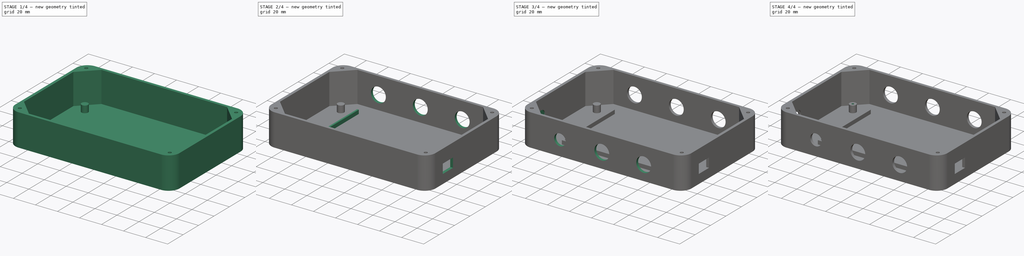
[diagram: build sequence overview — one tinted view per stage of 4, left to right]
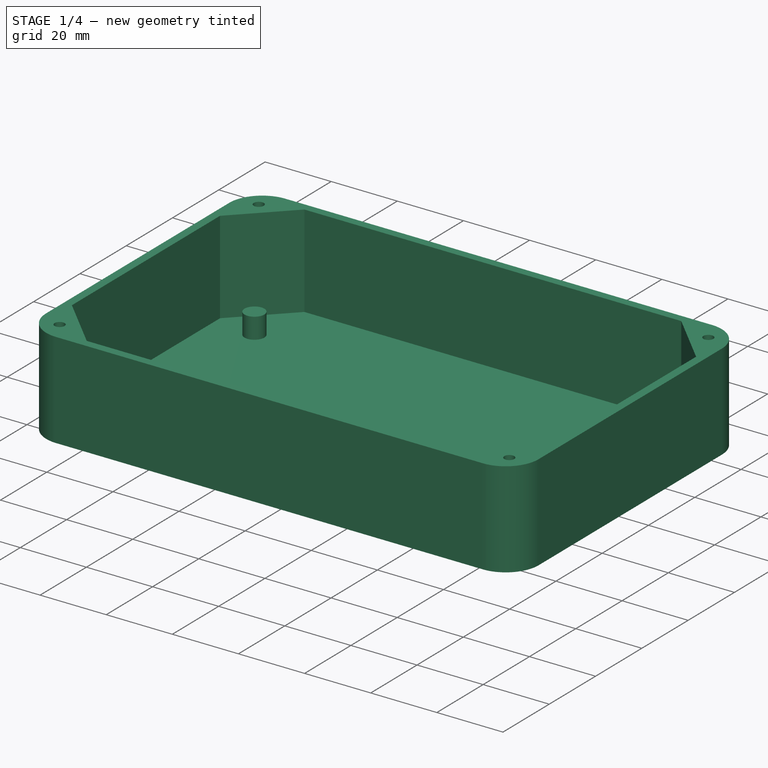
[diagram: stage 1 of 4 — iso view after this stage's code; geometry added in this stage tinted green]
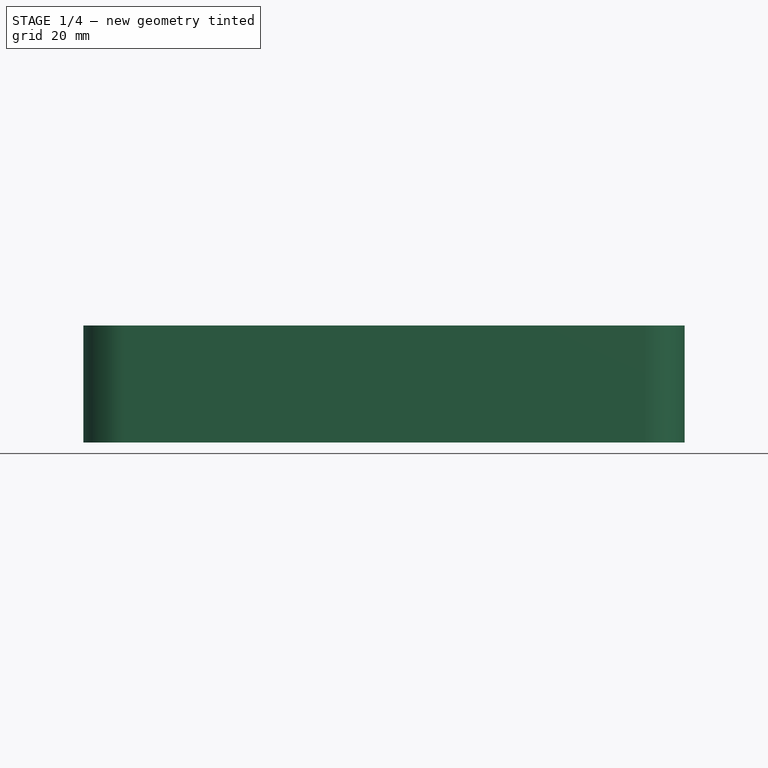
[diagram: stage 1 of 4 — front view after this stage's code; geometry added in this stage tinted green]
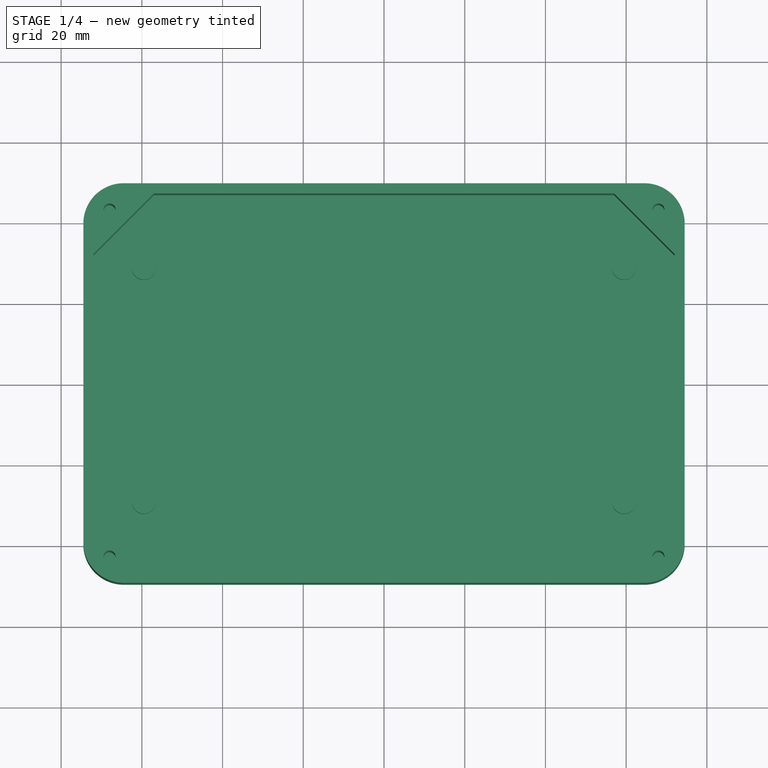
[diagram: stage 1 of 4 — top view after this stage's code; geometry added in this stage tinted green]
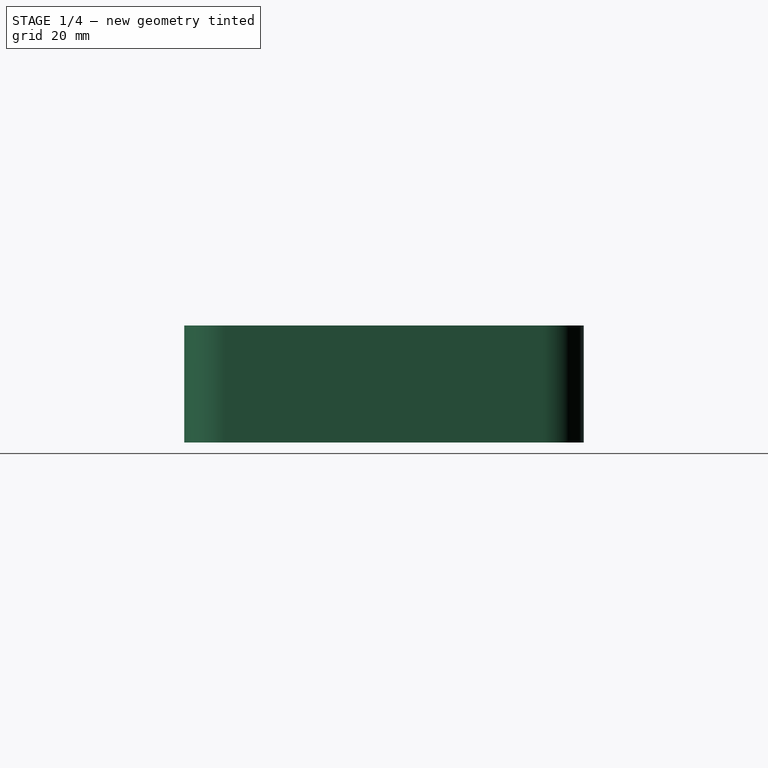
[diagram: stage 1 of 4 — right view after this stage's code; geometry added in this stage tinted green]
FCSTD DOCUMENT  (FreeCAD 0.18.4R)
Label: enclosure
License: All rights reserved
LicenseURL: http://en.wikipedia.org/wiki/All_rights_reserved
objects: Sketcher::SketchObject×11, PartDesign::Pocket×8, PartDesign::Pad×3, PartDesign::Body×1
note: 34 computed .brp shape members not serialized (recipe doc carries the construction recipe); baked Part::Feature solids carry a one-line shape summary decoded from their .brp

FEATURE [Sketcher::SketchObject] Sketch
  MapMode = 5
  Support = -> [XY_Plane]
  sketch-geometry (8):
    g0: LineSegment StartX=-64.5 StartY=49.5 StartZ=0 EndX=64.5 EndY=49.5 EndZ=0
    g1: LineSegment StartX=74.5 StartY=39.5 StartZ=0 EndX=74.5 EndY=-39.5 EndZ=0
    g2: LineSegment StartX=64.5 StartY=-49.5 StartZ=0 EndX=-64.5 EndY=-49.5 EndZ=0
    g3: LineSegment StartX=-74.5 StartY=-39.5 StartZ=0 EndX=-74.5 EndY=39.5 EndZ=0
    g4: ArcOfCircle CenterX=-64.5 CenterY=39.5 CenterZ=0 NormalX=0 NormalY=0 NormalZ=1 AngleXU=0 Radius=10 StartAngle=1.5708 EndAngle=3.14159
    g5: ArcOfCircle CenterX=-64.5 CenterY=-39.5 CenterZ=0 NormalX=0 NormalY=0 NormalZ=1 AngleXU=0 Radius=10 StartAngle=3.14159 EndAngle=4.71239
    g6: ArcOfCircle CenterX=64.5 CenterY=-39.5 CenterZ=0 NormalX=0 NormalY=0 NormalZ=1 AngleXU=0 Radius=10 StartAngle=4.71239 EndAngle=6.28319
    g7: ArcOfCircle CenterX=64.5 CenterY=39.5 CenterZ=0 NormalX=0 NormalY=0 NormalZ=1 AngleXU=0 Radius=10 StartAngle=8.2e-15 EndAngle=1.5708
  constraints (19):
    c: Horizontal(g0)
    c: Horizontal(g2)
    c: Vertical(g1)
    c: Vertical(g3)
    c: Tangent(g0,g4) = 1.5708
    c: Tangent(g3,g4) = 1.5708
    c: Tangent(g3,g5) = 1.5708
    c: Tangent(g2,g5) = 1.5708
    c: Tangent(g1,g6) = 1.5708
    c: Tangent(g2,g6) = 1.5708
    c: Tangent(g0,g7) = 1.5708
    c: Tangent(g1,g7) = 1.5708
    c: Equal(g7,g4)
    c: Equal(g4,g5)
    c: Equal(g5,g6)
    c: Symmetric(g7,g5,g-1)
    c: DistanceY(g2,g0) = 99
    c: DistanceX(g3,g1) = 149
    c: Radius(g4) = 10
FEATURE [PartDesign::Pad] Pad
  Length = 29
  Length2 = 100
  Profile = -> Sketch
  Type = 0
FEATURE [Sketcher::SketchObject] Sketch001
  ExternalGeometry = -> [Pad]
  MapMode = 5
  Placement = pos=(0,0,29) rot=(0,0,1;0rad)
  Support = -> [Pad]
  sketch-geometry (12):
    g0: LineSegment StartX=-57 StartY=47 StartZ=0 EndX=57 EndY=47 EndZ=0
    g1: LineSegment StartX=57 StartY=47 StartZ=0 EndX=72 EndY=32 EndZ=0
    g2: LineSegment StartX=72 StartY=32 StartZ=0 EndX=72 EndY=-32 EndZ=0
    g3: LineSegment StartX=72 StartY=-32 StartZ=0 EndX=57 EndY=-47 EndZ=0
    g4: LineSegment StartX=57 StartY=-47 StartZ=0 EndX=-57 EndY=-47 EndZ=0
    g5: LineSegment StartX=-57 StartY=-47 StartZ=0 EndX=-72 EndY=-32 EndZ=0
    g6: LineSegment StartX=-72 StartY=-32 StartZ=0 EndX=-72 EndY=32 EndZ=0
    g7: LineSegment StartX=-72 StartY=32 StartZ=0 EndX=-57 EndY=47 EndZ=0
    g8: Circle CenterX=68 CenterY=43 CenterZ=0 NormalX=0 NormalY=0 NormalZ=1 AngleXU=0 Radius=1.5
    g9: Circle CenterX=-68 CenterY=43 CenterZ=0 NormalX=0 NormalY=0 NormalZ=1 AngleXU=0 Radius=1.5
    g10: Circle CenterX=68 CenterY=-43 CenterZ=0 NormalX=0 NormalY=0 NormalZ=1 AngleXU=0 Radius=1.5
    g11: Circle CenterX=-68 CenterY=-43 CenterZ=0 NormalX=0 NormalY=0 NormalZ=1 AngleXU=0 Radius=1.5
  constraints (34):
    c: Horizontal(g0)
    c: Coincident(g0,g1)
    c: Coincident(g1,g2)
    c: Vertical(g2)
    c: Coincident(g2,g3)
    c: Coincident(g3,g4)
    c: Horizontal(g4)
    c: Coincident(g4,g5)
    c: Coincident(g5,g6)
    c: Coincident(g6,g7)
    c: Coincident(g7,g0)
    c: Vertical(g6)
    c: Equal(g2,g6)
    c: Equal(g0,g4)
    c: Equal(g7,g1)
    c: Equal(g1,g3)
    c: Equal(g3,g5)
    c: DistanceY(g0,g-3) = 2.5
    c: DistanceY(g-4,g3) = 2.5
    c: DistanceX(g2,g-5) = 2.5
    c: DistanceX(g-6,g5) = 2.5
    c: Angle(g1,g2) = 2.35619
    c: Angle(g6,g7) = 2.35619
    c: DistanceX(g3,g3) = 15
    c: Radius(g8) = 1.5
    c: Equal(g11,g10)
    c: Equal(g10,g9)
    c: Equal(g9,g8)
    c: Horizontal(g10,g11)
    c: Vertical(g11,g9)
    c: Symmetric(g9,g8,g-2)
    c: Symmetric(g10,g8,g-1)
    c: DistanceY(g-7,g8) = 3.5
    c: DistanceX(g-7,g8) = 3.5
FEATURE [PartDesign::Pocket] Pocket
  BaseFeature = -> Pad
  Length = 28
  Length2 = 100
  Profile = -> Sketch001
  Type = 0
FEATURE [Sketcher::SketchObject] Sketch004
  MapMode = 5
  Placement = pos=(0,0,1) rot=(0,0,1;0rad)
  Support = -> [Pocket]
  sketch-geometry (4):
    g0: Circle CenterX=-59.5 CenterY=29 CenterZ=0 NormalX=0 NormalY=0 NormalZ=1 AngleXU=0 Radius=3
    g1: Circle CenterX=-59.5 CenterY=-29 CenterZ=0 NormalX=0 NormalY=0 NormalZ=1 AngleXU=0 Radius=3
    g2: Circle CenterX=59.5 CenterY=-29 CenterZ=0 NormalX=0 NormalY=0 NormalZ=1 AngleXU=0 Radius=3
    g3: Circle CenterX=59.5 CenterY=29 CenterZ=0 NormalX=0 NormalY=0 NormalZ=1 AngleXU=0 Radius=3
  constraints (11):
    c: Equal(g2,g1)
    c: Radius(g0) = 3
    c: Horizontal(g0,g3)
    c: Horizontal(g1,g2)
    c: Vertical(g1,g0)
    c: DistanceY(g1,g0) = 58
    c: Symmetric(g0,g2,g-1)
    c: Radius(g1) = 3
    c: Equal(g2,g3)
    c: DistanceX(g3,g2) = 0
    c: DistanceX(g1,g2) = 119
FEATURE [PartDesign::Pad] Pad001
  BaseFeature = -> Pocket
  Length = 6.3
  Length2 = 100
  Profile = -> Sketch004
  Type = 0
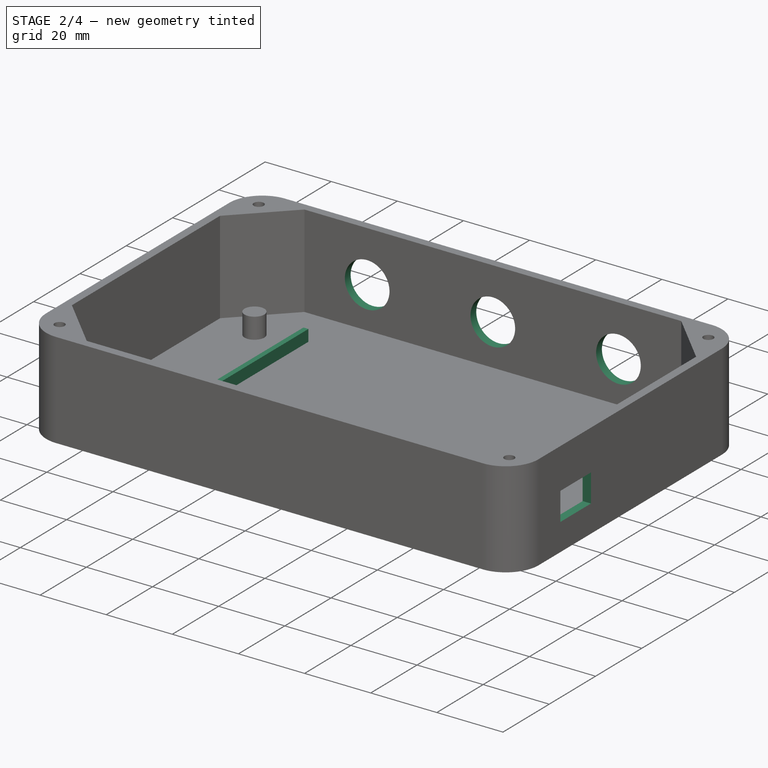
[diagram: stage 2 of 4 — iso view after this stage's code; geometry added in this stage tinted green]
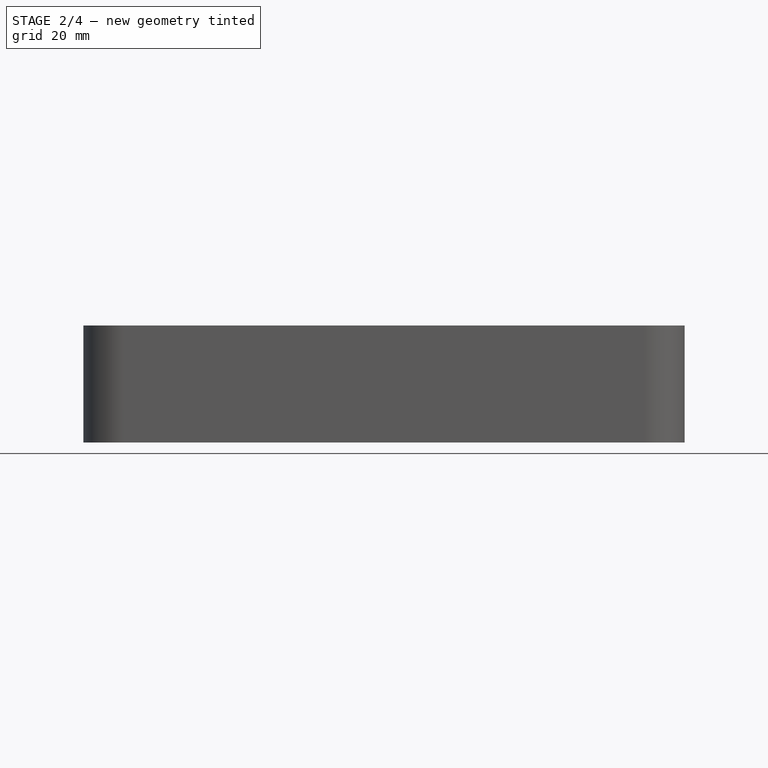
[diagram: stage 2 of 4 — front view after this stage's code; geometry added in this stage tinted green]
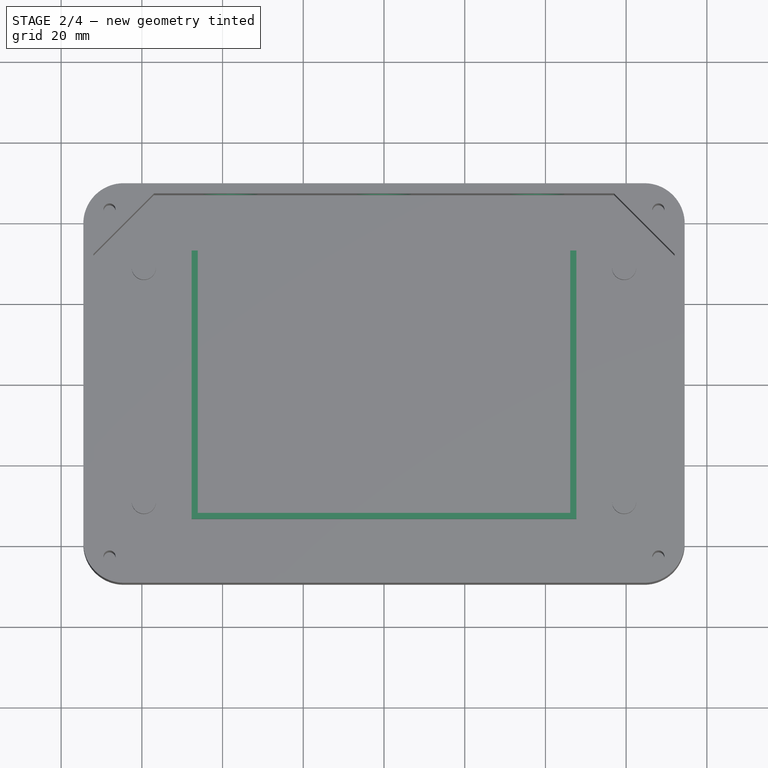
[diagram: stage 2 of 4 — top view after this stage's code; geometry added in this stage tinted green]
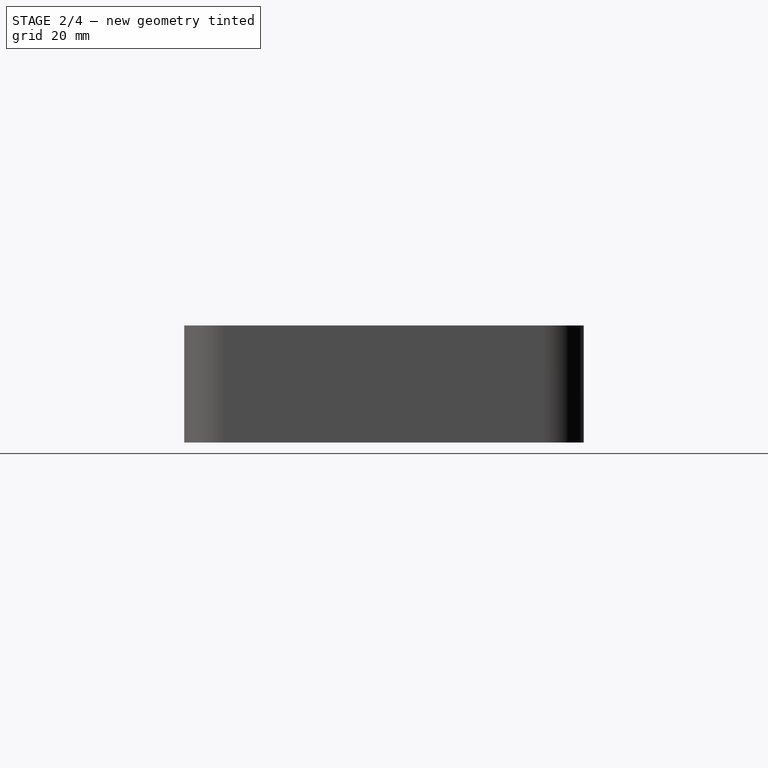
[diagram: stage 2 of 4 — right view after this stage's code; geometry added in this stage tinted green]
FEATURE [Sketcher::SketchObject] Sketch006
  MapMode = 5
  Placement = pos=(0,49.5,0) rot=(0,0.707107,0.707107;3.14159rad)
  Support = -> [Pad001]
  sketch-geometry (3):
    g0: Circle CenterX=-38 CenterY=13.5 CenterZ=0 NormalX=0 NormalY=0 NormalZ=1 AngleXU=0 Radius=6.75
    g1: Circle CenterX=0 CenterY=13.5 CenterZ=0 NormalX=0 NormalY=0 NormalZ=1 AngleXU=0 Radius=6.75
    g2: Circle CenterX=38 CenterY=13.5 CenterZ=0 NormalX=0 NormalY=0 NormalZ=1 AngleXU=0 Radius=6.75
  constraints (8):
    c: Equal(g2,g1)
    c: Equal(g1,g0)
    c: Radius(g1) = 6.75
    c: Horizontal(g1,g2)
    c: PointOnObject(g1,g-2)
    c: Symmetric(g2,g0,g-2)
    c: DistanceX(g0,g1) = 38
    c: DistanceY(g-1,g1) = 13.5
FEATURE [PartDesign::Pocket] Pocket003
  BaseFeature = -> Pad001
  Length = 5
  Length2 = 100
  Profile = -> Sketch006
  Type = 0
FEATURE [Sketcher::SketchObject] Sketch008
  MapMode = 5
  Placement = pos=(74.5,0,0) rot=(0.57735,0.57735,0.57735;2.0944rad)
  Support = -> [Pocket003]
  sketch-geometry (4):
    g0: LineSegment StartX=-30.2 StartY=16.75 StartZ=0 EndX=-17 EndY=16.75 EndZ=0
    g1: LineSegment StartX=-17 StartY=16.75 StartZ=0 EndX=-17 EndY=8.25 EndZ=0
    g2: LineSegment StartX=-17 StartY=8.25 StartZ=0 EndX=-30.2 EndY=8.25 EndZ=0
    g3: LineSegment StartX=-30.2 StartY=8.25 StartZ=0 EndX=-30.2 EndY=16.75 EndZ=0
  constraints (12):
    c: Coincident(g0,g1)
    c: Coincident(g1,g2)
    c: Coincident(g2,g3)
    c: Coincident(g3,g0)
    c: Horizontal(g0)
    c: Horizontal(g2)
    c: Vertical(g1)
    c: Vertical(g3)
    c: DistanceX(g0,g0) = 13.2
    c: DistanceY(g1,g1) = 8.5
    c: DistanceY(g-1,g1) = 8.25
    c: DistanceX(g1,g-1) = 17
FEATURE [PartDesign::Pocket] Pocket005
  BaseFeature = -> Pocket003
  Length = 5
  Length2 = 100
  Profile = -> Sketch008
  Type = 0
FEATURE [Sketcher::SketchObject] Sketch010
  MapMode = 5
  Placement = pos=(0,0,1) rot=(0,0,1;0rad)
  sketch-geometry (8):
    g0: LineSegment StartX=-47.65 StartY=33.25 StartZ=0 EndX=-47.65 EndY=-33.25 EndZ=0
    g1: LineSegment StartX=-47.65 StartY=-33.25 StartZ=0 EndX=47.65 EndY=-33.25 EndZ=0
    g2: LineSegment StartX=47.65 StartY=-33.25 StartZ=0 EndX=47.65 EndY=33.25 EndZ=0
    g3: LineSegment StartX=47.65 StartY=33.25 StartZ=0 EndX=46.15 EndY=33.25 EndZ=0
    g4: LineSegment StartX=46.15 StartY=33.25 StartZ=0 EndX=46.15 EndY=-31.75 EndZ=0
    g5: LineSegment StartX=46.15 StartY=-31.75 StartZ=0 EndX=-46.15 EndY=-31.75 EndZ=0
    g6: LineSegment StartX=-46.15 StartY=-31.75 StartZ=0 EndX=-46.15 EndY=33.25 EndZ=0
    g7: LineSegment StartX=-46.15 StartY=33.25 StartZ=0 EndX=-47.65 EndY=33.25 EndZ=0
  constraints (23):
    c: Vertical(g0)
    c: Coincident(g0,g1)
    c: Horizontal(g1)
    c: Coincident(g1,g2)
    c: Coincident(g2,g3)
    c: Coincident(g3,g4)
    c: Vertical(g4)
    c: Coincident(g4,g5)
    c: Horizontal(g5)
    c: Coincident(g5,g6)
    c: Vertical(g6)
    c: Coincident(g6,g7)
    c: Coincident(g7,g0)
    c: Horizontal(g7)
    c: Horizontal(g3)
    c: Vertical(g2)
    c: Equal(g7,g3)
    c: DistanceX(g3,g3) = 1.5
    c: DistanceY(g1,g4) = 1.5
    c: Equal(g6,g4)
    c: DistanceX(g5,g5) = 92.3
    c: DistanceY(g4,g4) = 65
    c: Symmetric(g0,g1,g-1)
FEATURE [PartDesign::Pad] Pad002
  BaseFeature = -> Pocket005
  Length = 3.5
  Length2 = 100
  Profile = -> Sketch010
  Type = 0
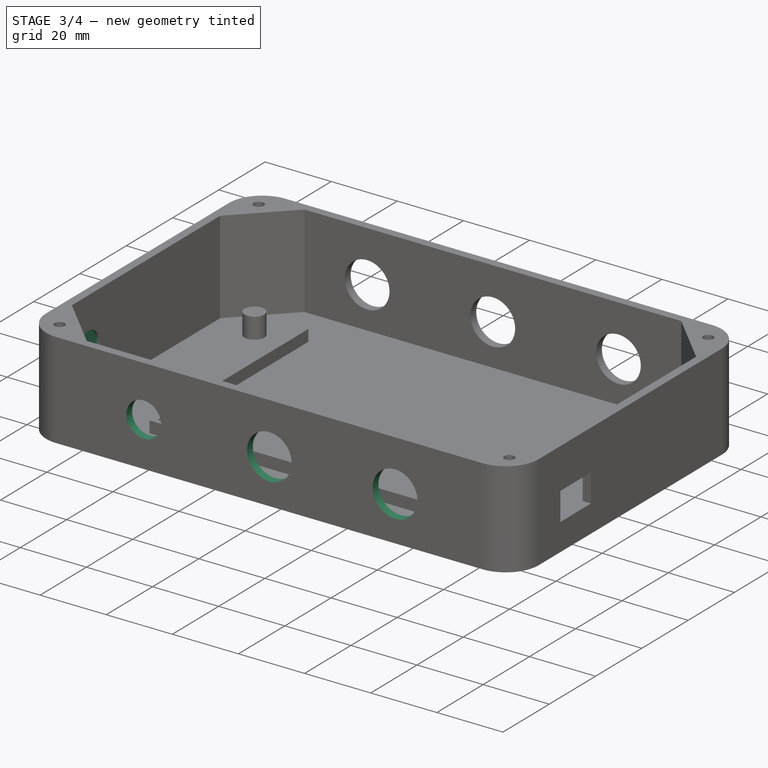
[diagram: stage 3 of 4 — iso view after this stage's code; geometry added in this stage tinted green]
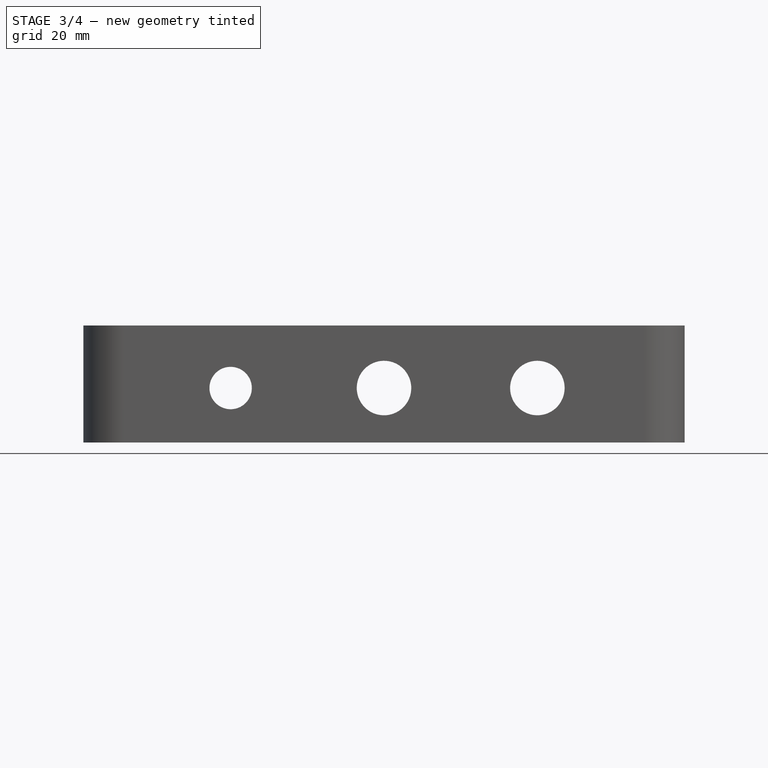
[diagram: stage 3 of 4 — front view after this stage's code; geometry added in this stage tinted green]
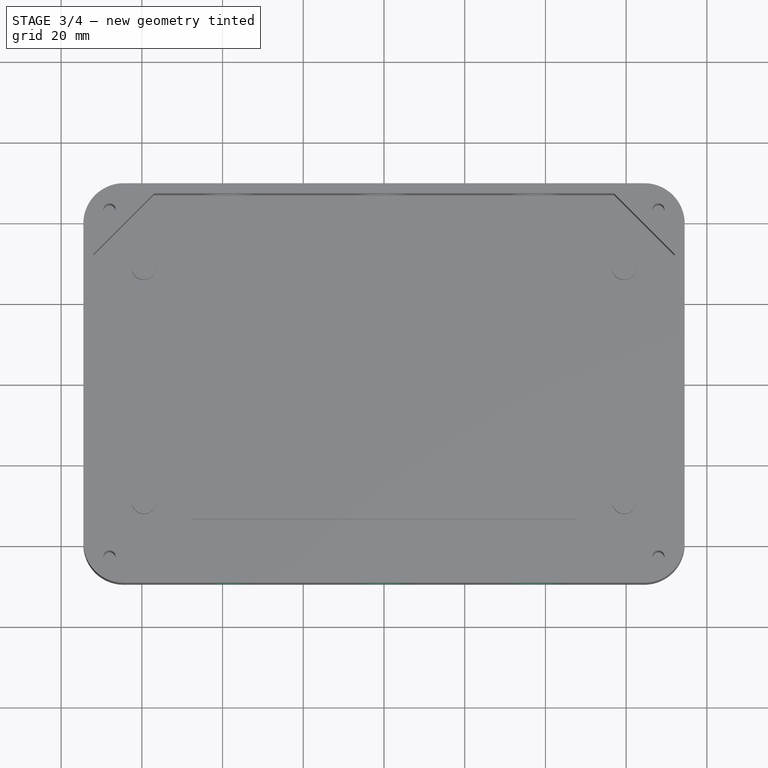
[diagram: stage 3 of 4 — top view after this stage's code; geometry added in this stage tinted green]
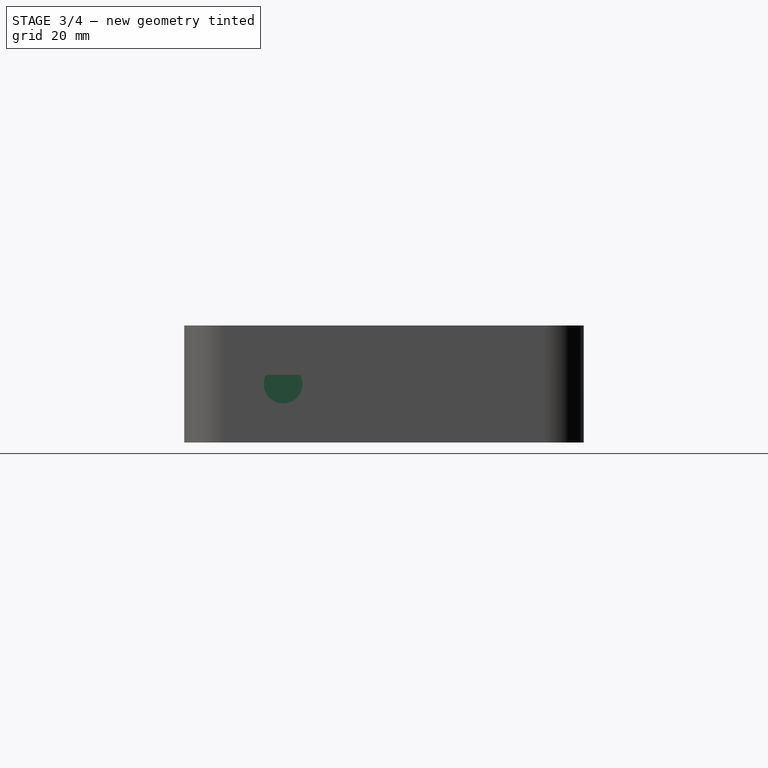
[diagram: stage 3 of 4 — right view after this stage's code; geometry added in this stage tinted green]
FEATURE [Sketcher::SketchObject] Sketch011
  MapMode = 5
  Placement = pos=(0,-49.5,0) rot=(1,0,0;1.5708rad)
  sketch-geometry (3):
    g0: Circle CenterX=0 CenterY=13.5 CenterZ=0 NormalX=0 NormalY=0 NormalZ=1 AngleXU=0 Radius=6.75
    g1: Circle CenterX=38 CenterY=13.5 CenterZ=0 NormalX=0 NormalY=0 NormalZ=1 AngleXU=0 Radius=6.75
    g2: Circle CenterX=-38 CenterY=13.5 CenterZ=0 NormalX=0 NormalY=0 NormalZ=1 AngleXU=0 Radius=5.25
  constraints (9):
    c: PointOnObject(g0,g-2)
    c: Equal(g1,g0)
    c: Radius(g0) = 6.75
    c: DistanceX(g0,g1) = 38
    c: DistanceY(g-1,g0) = 13.5
    c: DistanceY(g0,g1) = 0
    c: DistanceX(g2,g0) = 38
    c: DistanceY(g0,g2) = 0
    c: Radius(g2) = 5.25
FEATURE [Sketcher::SketchObject] Sketch012
  MapMode = 5
  Placement = pos=(-74.5,0,0) rot=(0.57735,-0.57735,-0.57735;2.0944rad)
  sketch-geometry (2):
    g0: ArcOfCircle CenterX=25 CenterY=14.5 CenterZ=0 NormalX=0 NormalY=0 NormalZ=1 AngleXU=0 Radius=3.10515 StartAngle=0.517375 EndAngle=5.76581
    g1: LineSegment StartX=27.6988 StartY=16.0358 StartZ=0 EndX=27.6988 EndY=12.9642 EndZ=0
  constraints (7):
    c: Radius(g0) = 3.10515
    c: Vertical(g1)
    c: Coincident(g0,g1)
    c: Coincident(g0,g1)
    c: DistanceX(g0,g0) = 2.69875
    c: DistanceX(g-1,g0) = 25
    c: DistanceY(g-1,g0) = 14.5
FEATURE [Sketcher::SketchObject] Sketch014
  MapMode = 5
  Placement = pos=(-72,0,0) rot=(0.57735,0.57735,0.57735;2.0944rad)
  sketch-geometry (1):
    g0: Circle CenterX=-25 CenterY=14.5 CenterZ=0 NormalX=0 NormalY=0 NormalZ=1 AngleXU=0 Radius=4.8
  constraints (1):
    c: Radius(g0) = 4.8
FEATURE [PartDesign::Pocket] Pocket010
  BaseFeature = -> Pad002
  Length = 1
  Length2 = 100
  Profile = -> Sketch014
  Type = 0
FEATURE [Sketcher::SketchObject] Sketch015
  ExternalGeometry = -> [Pocket010]
  MapMode = 5
  Placement = pos=(-74.5,0,0) rot=(0.57735,-0.57735,-0.57735;2.0944rad)
  sketch-geometry (1):
    g0: Circle CenterX=25 CenterY=14.5 CenterZ=0 NormalX=0 NormalY=0 NormalZ=1 AngleXU=0 Radius=4.4
  constraints (3):
    c: Radius(g0) = 4.4
    c: DistanceY(g-1,g0) = 14.5
    c: DistanceX(g-1,g0) = 25
FEATURE [PartDesign::Pocket] Pocket011
  BaseFeature = -> Pocket010
  Length = 5
  Length2 = 100
  Profile = -> Sketch011
  Type = 0
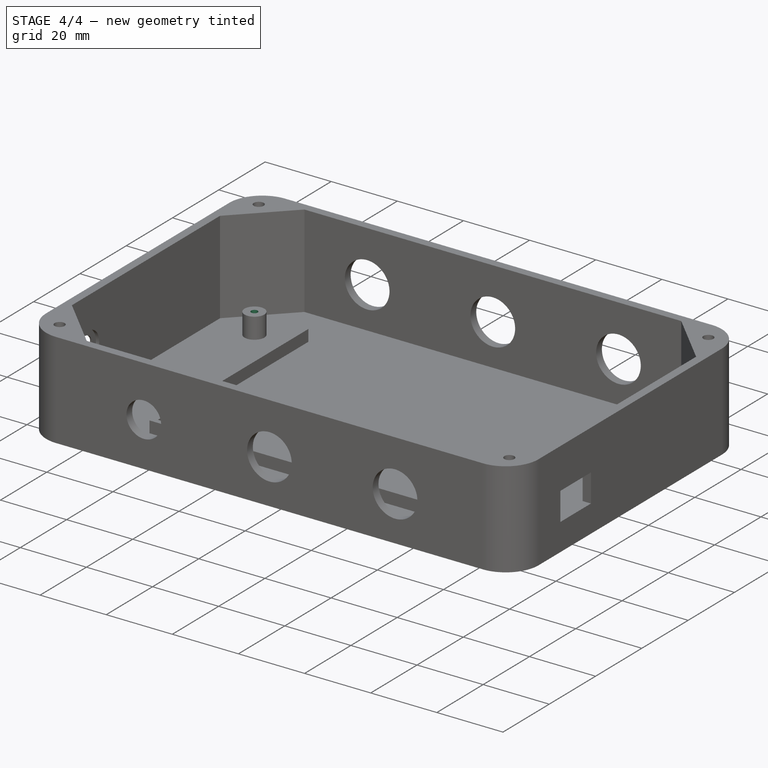
[diagram: stage 4 of 4 — iso view after this stage's code; geometry added in this stage tinted green]
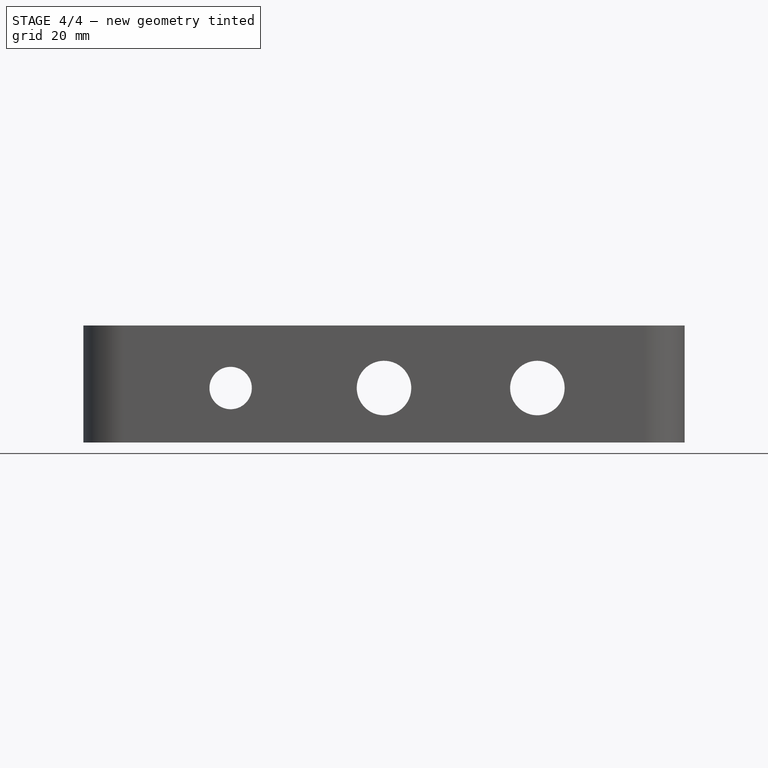
[diagram: stage 4 of 4 — front view after this stage's code; geometry added in this stage tinted green]
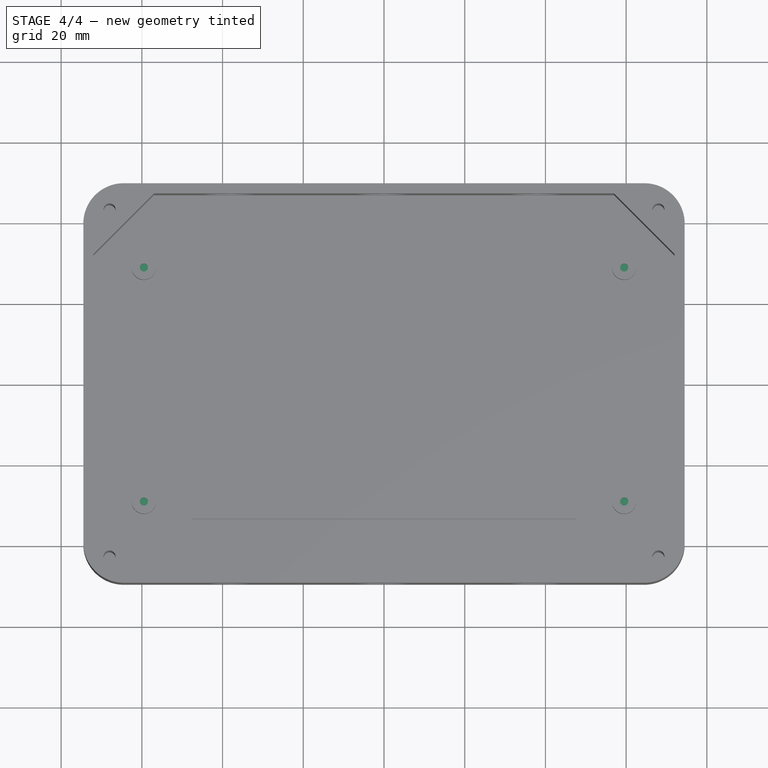
[diagram: stage 4 of 4 — top view after this stage's code; geometry added in this stage tinted green]
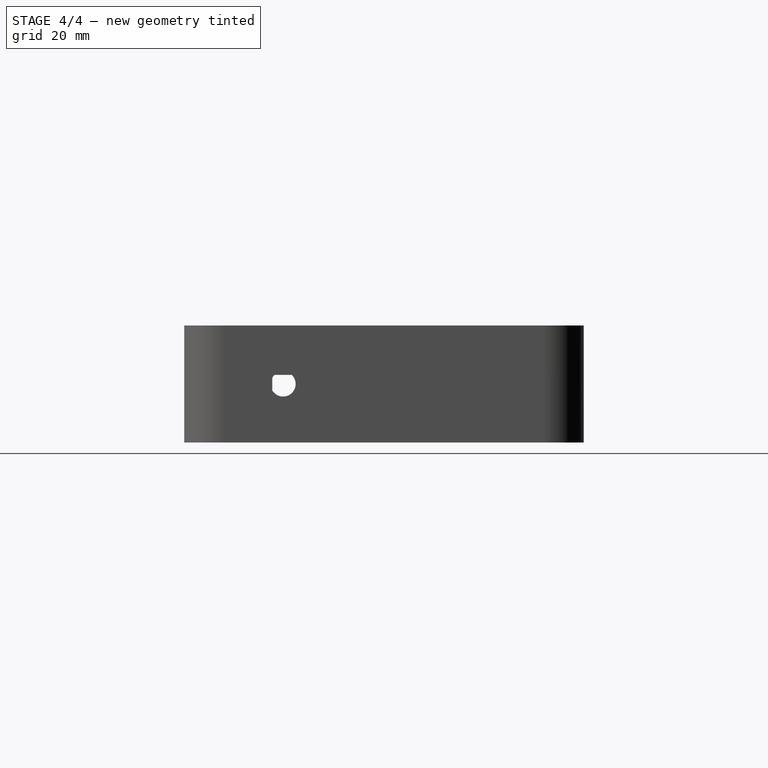
[diagram: stage 4 of 4 — right view after this stage's code; geometry added in this stage tinted green]
FEATURE [PartDesign::Pocket] Pocket012
  BaseFeature = -> Pocket011
  Length = 1
  Length2 = 100
  Profile = -> Sketch015
  Type = 0
FEATURE [PartDesign::Pocket] Pocket013
  BaseFeature = -> Pocket012
  Length = 5
  Length2 = 100
  Profile = -> Sketch012
  Type = 0
FEATURE [Sketcher::SketchObject] Sketch016
  ExternalGeometry = -> [Pocket013]
  MapMode = 5
  Placement = pos=(0,0,7.3) rot=(0,0,1;0rad)
  Support = -> [Pocket013]
  sketch-geometry (4):
    g0: Circle CenterX=-59.5 CenterY=29 CenterZ=0 NormalX=0 NormalY=0 NormalZ=1 AngleXU=0 Radius=1
    g1: Circle CenterX=-59.5 CenterY=-29 CenterZ=0 NormalX=0 NormalY=0 NormalZ=1 AngleXU=0 Radius=1
    g2: Circle CenterX=59.5 CenterY=29 CenterZ=0 NormalX=0 NormalY=0 NormalZ=1 AngleXU=0 Radius=1
    g3: Circle CenterX=59.5 CenterY=-29 CenterZ=0 NormalX=0 NormalY=0 NormalZ=1 AngleXU=0 Radius=1
  constraints (8):
    c: Coincident(g0,g-3)
    c: Coincident(g1,g-4)
    c: Coincident(g2,g-6)
    c: Coincident(g3,g-5)
    c: Equal(g3,g2)
    c: Equal(g2,g0)
    c: Equal(g0,g1)
    c: Radius(g1) = 1
FEATURE [PartDesign::Pocket] Pocket014
  BaseFeature = -> Pocket013
  Length = 3
  Length2 = 100
  Profile = -> Sketch016
  Type = 0
FEATURE [PartDesign::Body] Body
  Group = -> [Sketch,Pad,Sketch001,Pocket,Sketch004,Pad001,Sketch006,Pocket003,Sketch008,Pocket005,Sketch010,Pad002,Sketch011,Sketch012,Sketch014,Pocket010,Sketch015,Pocket011,Pocket012,Pocket013,Sketch016,Pocket014]
  Origin = -> Origin
  Tip = -> Pocket014
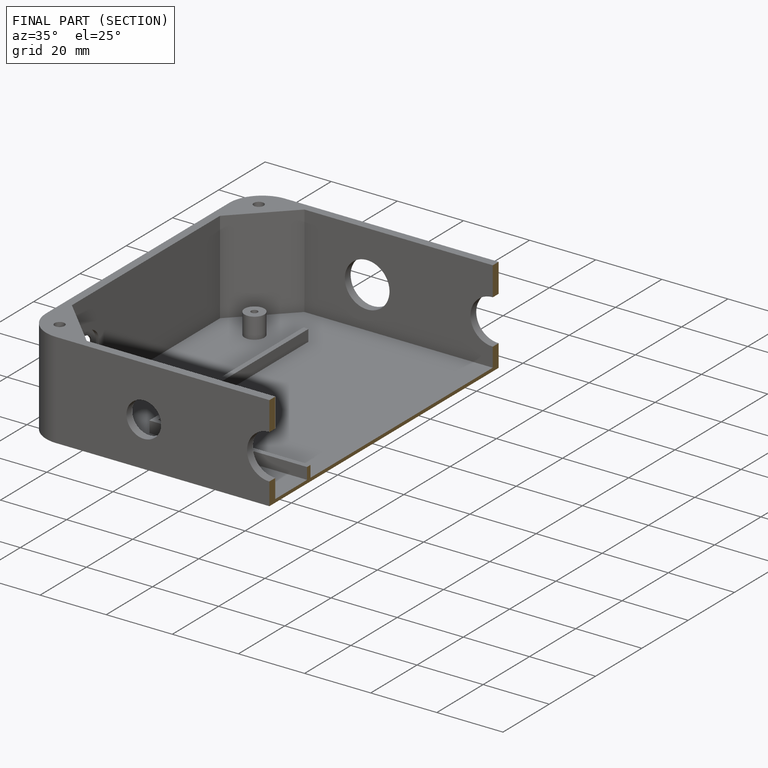
[diagram: finished part — half-section view (interior)]
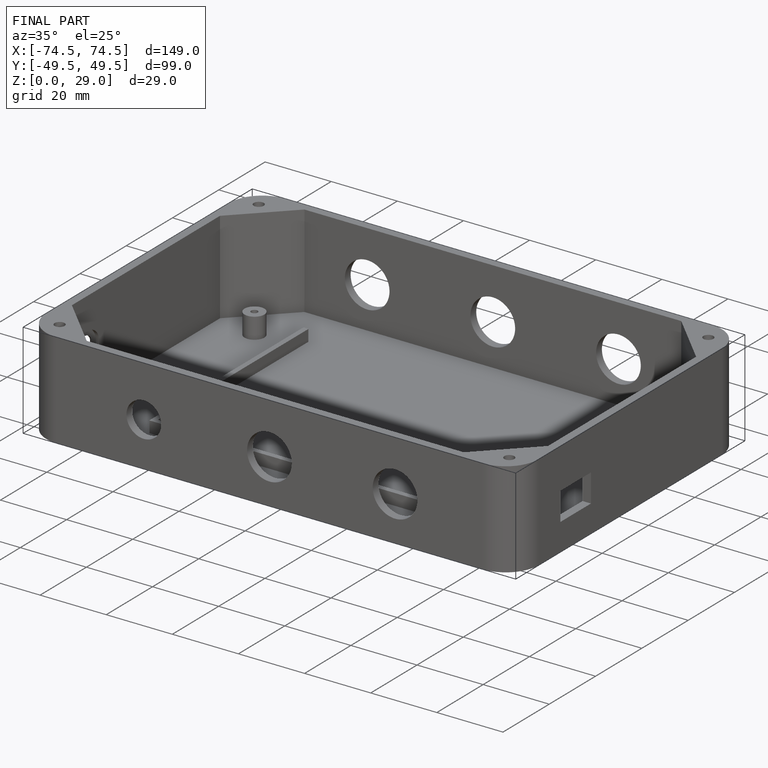
[diagram: finished part — iso view with bounding-box wireframe]
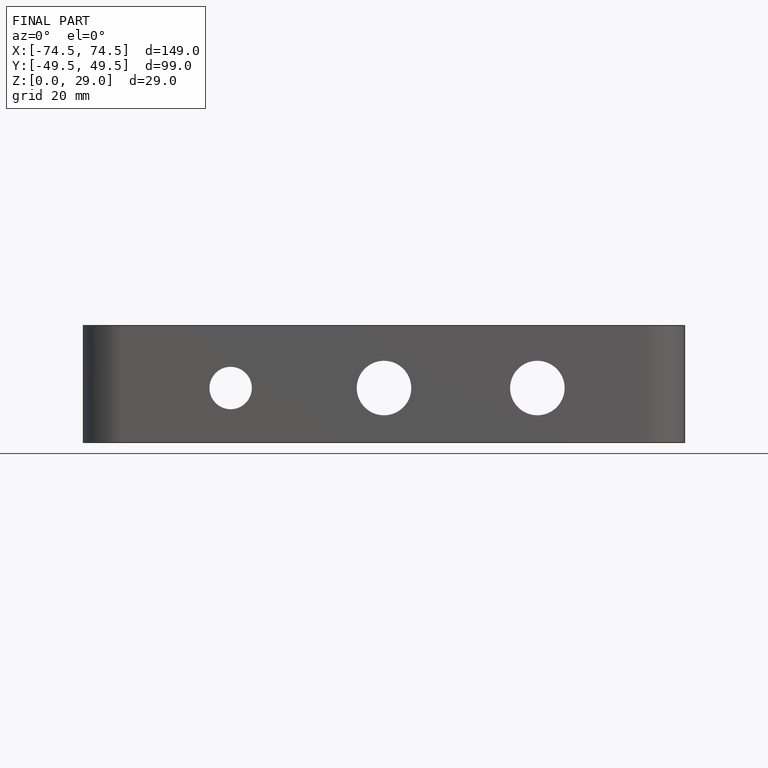
[diagram: finished part — front view with bounding-box wireframe]
